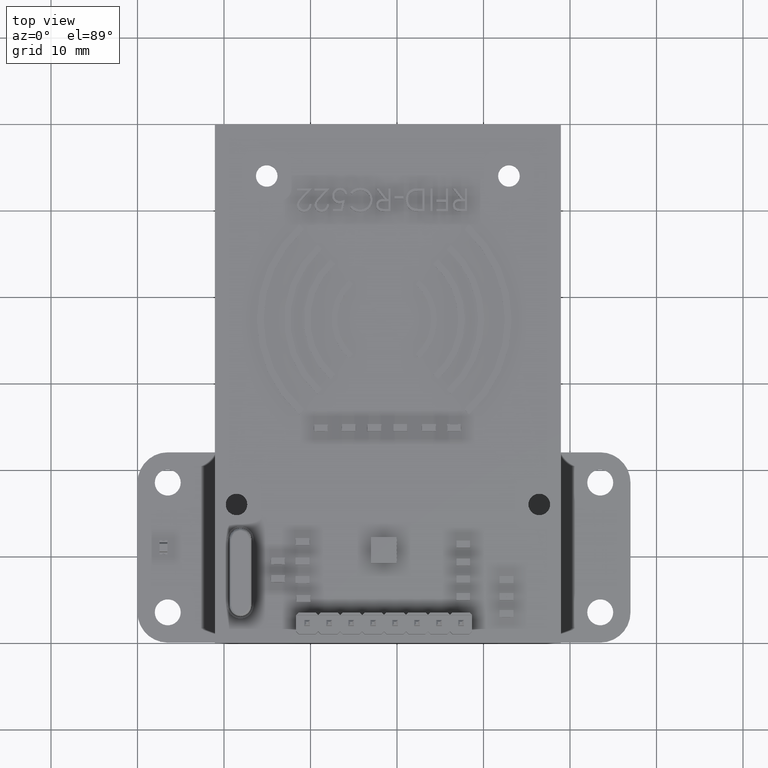
[diagram: clean part render]
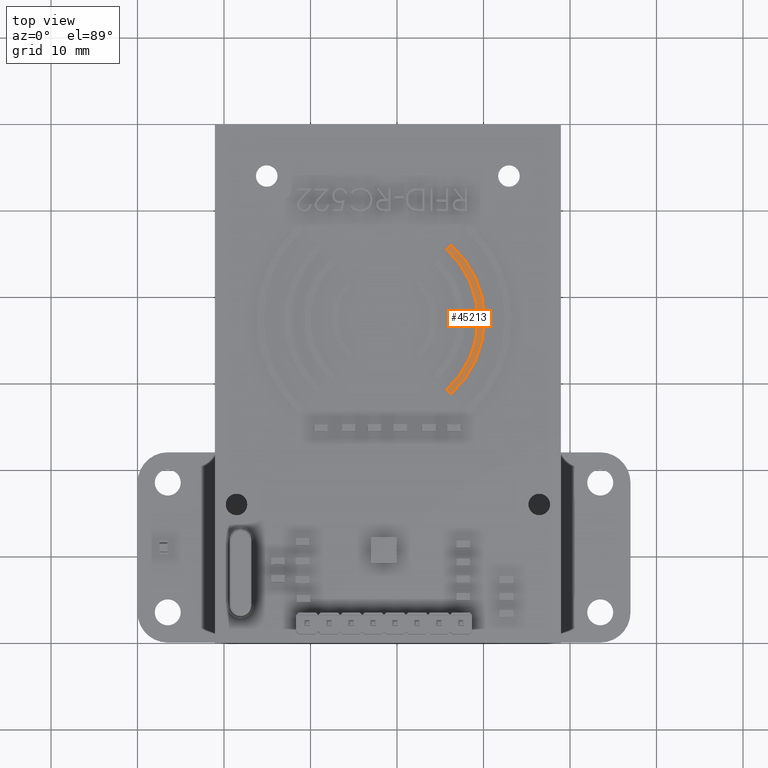
[diagram: same view with one face highlighted and labeled with its STEP entity id]
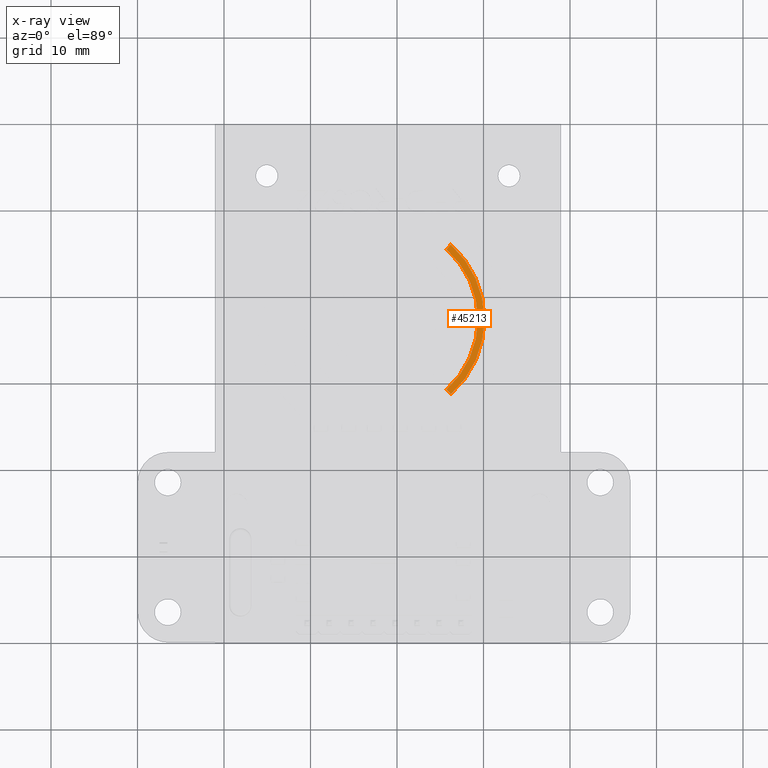
[diagram: x-ray of the same camera — body ghosted, the highlighted face saturated]
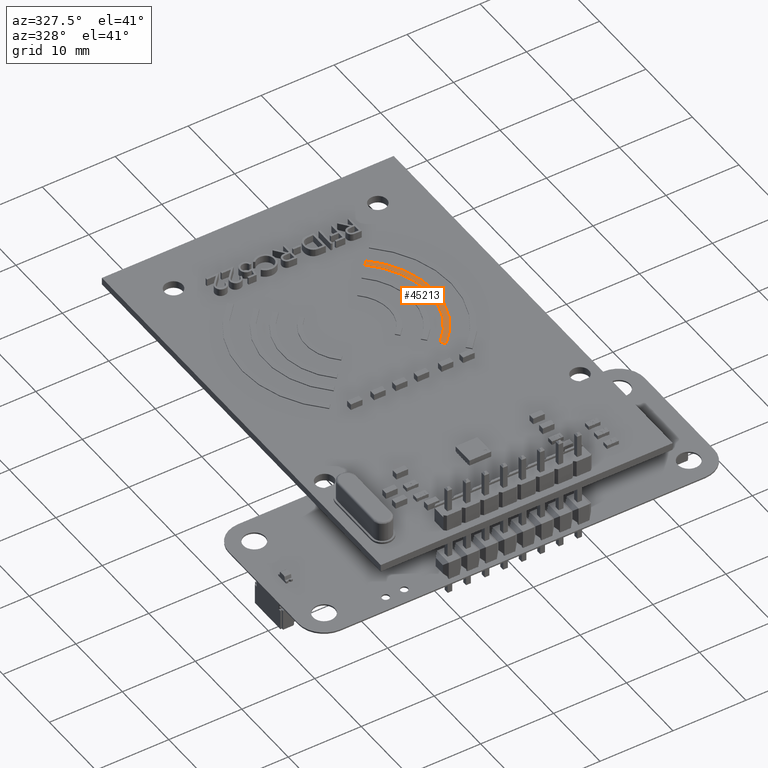
[diagram: same view with one face highlighted and labeled with its STEP entity id]
A machine part, top view. The second image highlights one B-rep face of the part: STEP entity #45213.
The next image is the same camera in x-ray: the body ghosted, the highlighted face saturated — about 0% of this face is hidden behind the body in this view.
A second angle (auxiliary view) of the same face is appended — the face is thin or edge-on in the first view.
In plain terms, the highlighted planar face has unit normal (0, 0, 1).
Its self-contained STEP definition (entity closure, byte-faithful):
#42815 = EDGE_CURVE('',#42816,#42818,#42820,.T.);
#42816 = VERTEX_POINT('',#42817);
#42817 = CARTESIAN_POINT('',(8.839977430345,-37.40770095608,1.1));
#42818 = VERTEX_POINT('',#42819);
#42819 = CARTESIAN_POINT('',(12.714744386746,-46.05359653676,1.1));
#42820 = CIRCLE('',#42821,11.583319767146);
#42821 = AXIS2_PLACEMENT_3D('',#42822,#42823,#42824);
#42822 = CARTESIAN_POINT('',(20.423297197491,-37.40770095608,1.1));
#42823 = DIRECTION('',(-0.,0.,1.));
#42824 = DIRECTION('',(1.,0.,0.));
#42858 = VERTEX_POINT('',#42859);
#42859 = CARTESIAN_POINT('',(13.208703938677,-29.31582930337,1.1));
#42877 = VERTEX_POINT('',#42878);
#42878 = CARTESIAN_POINT('',(9.582229780757,-37.40770095608,1.1));
#42884 = EDGE_CURVE('',#42858,#42877,#42885,.T.);
#42885 = CIRCLE('',#42886,10.841067416734);
#42886 = AXIS2_PLACEMENT_3D('',#42887,#42888,#42889);
#42887 = CARTESIAN_POINT('',(20.423297197491,-37.40770095608,1.1));
#42888 = DIRECTION('',(-0.,0.,1.));
#42889 = DIRECTION('',(1.,0.,0.));
#45135 = VERTEX_POINT('',#45136);
#45136 = CARTESIAN_POINT('',(13.208703938677,-45.4995726088,1.1));
#45142 = EDGE_CURVE('',#42877,#45135,#45143,.T.);
#45143 = CIRCLE('',#45144,10.841067416734);
#45144 = AXIS2_PLACEMENT_3D('',#45145,#45146,#45147);
#45145 = CARTESIAN_POINT('',(20.423297197491,-37.40770095608,1.1));
#45146 = DIRECTION('',(-0.,0.,1.));
#45147 = DIRECTION('',(1.,0.,0.));
#45160 = VERTEX_POINT('',#45161);
#45161 = CARTESIAN_POINT('',(12.714744386746,-28.76180537541,1.1));
#45167 = EDGE_CURVE('',#45160,#42858,#45168,.T.);
#45168 = LINE('',#45169,#45170);
#45169 = CARTESIAN_POINT('',(-7.203009649737,-6.422097024329,1.1));
#45170 = VECTOR('',#45171,1.);
#45171 = DIRECTION('',(0.665487352996,-0.74640912575,0.));
#45183 = EDGE_CURVE('',#45160,#42816,#45184,.T.);
#45184 = CIRCLE('',#45185,11.583319767146);
#45185 = AXIS2_PLACEMENT_3D('',#45186,#45187,#45188);
#45186 = CARTESIAN_POINT('',(20.423297197491,-37.40770095608,1.1));
#45187 = DIRECTION('',(-0.,0.,1.));
#45188 = DIRECTION('',(1.,0.,0.));
#45202 = EDGE_CURVE('',#45135,#42818,#45203,.T.);
#45203 = LINE('',#45204,#45205);
#45204 = CARTESIAN_POINT('',(29.959733212296,-26.71165566457,1.1));
#45205 = VECTOR('',#45206,1.);
#45206 = DIRECTION('',(-0.665487352996,-0.74640912575,0.));
#45213 = ADVANCED_FACE('',(#45214),#45222,.T.);
#45214 = FACE_BOUND('',#45215,.T.);
#45215 = EDGE_LOOP('',(#45216,#45217,#45218,#45219,#45220,#45221));
#45216 = ORIENTED_EDGE('',*,*,#42884,.F.);
#45217 = ORIENTED_EDGE('',*,*,#45167,.F.);
#45218 = ORIENTED_EDGE('',*,*,#45183,.T.);
#45219 = ORIENTED_EDGE('',*,*,#42815,.T.);
#45220 = ORIENTED_EDGE('',*,*,#45202,.F.);
#45221 = ORIENTED_EDGE('',*,*,#45142,.F.);
#45222 = PLANE('',#45223);
#45223 = AXIS2_PLACEMENT_3D('',#45224,#45225,#45226);
#45224 = CARTESIAN_POINT('',(0.,0.,1.1));
#45225 = DIRECTION('',(-0.,0.,1.));
#45226 = DIRECTION('',(1.,0.,0.));